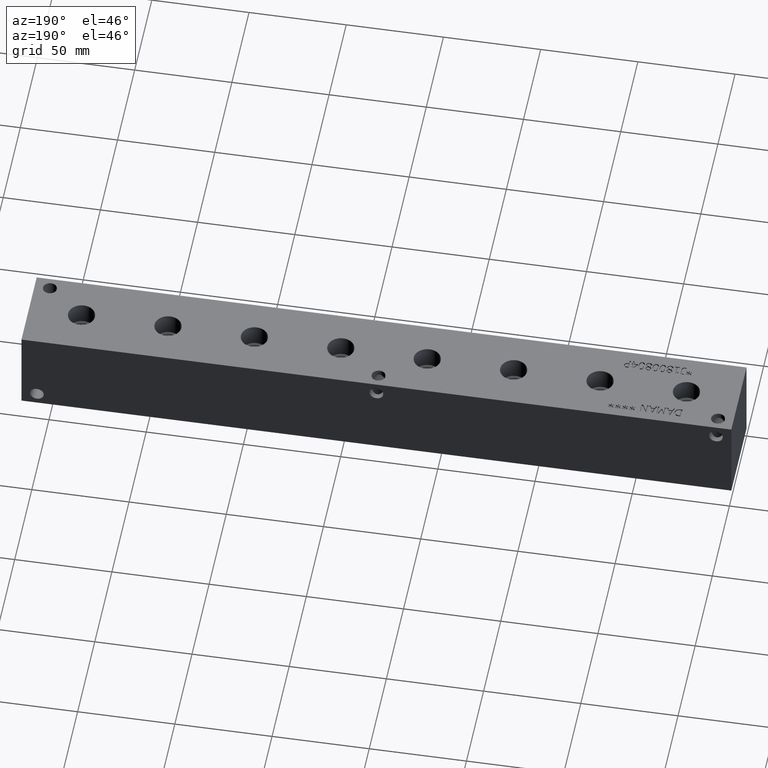
[diagram: clean part render]
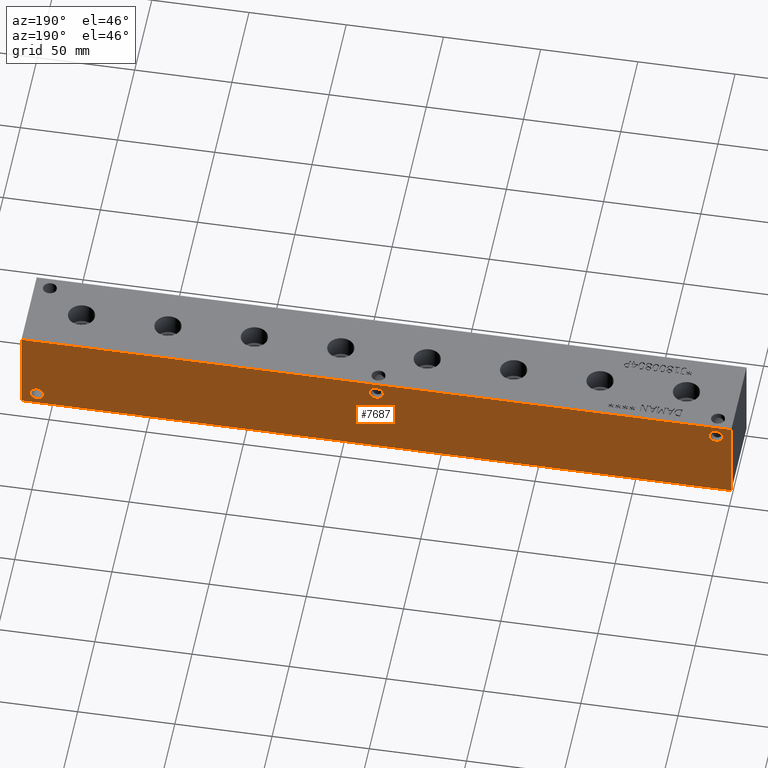
[diagram: same view with one face highlighted and labeled with its STEP entity id]
A machine part, auxiliary view. The second image highlights one B-rep face of the part: STEP entity #7687.
In plain terms, the highlighted planar face has unit normal (0, 1, 0).
Its self-contained STEP definition (entity closure, byte-faithful):
#166=CIRCLE('',#8039,3.5687);
#169=CIRCLE('',#8049,3.5687);
#172=CIRCLE('',#8058,3.5687);
#274=FACE_BOUND('',#1368,.T.);
#275=FACE_BOUND('',#1369,.T.);
#276=FACE_BOUND('',#1370,.T.);
#523=PLANE('',#8140);
#916=FACE_OUTER_BOUND('',#1367,.T.);
#1367=EDGE_LOOP('',(#6856,#6857,#6858,#6859));
#1368=EDGE_LOOP('',(#6860));
#1369=EDGE_LOOP('',(#6861));
#1370=EDGE_LOOP('',(#6862));
#1662=LINE('',#11801,#2382);
#2103=LINE('',#13148,#2823);
#2104=LINE('',#13151,#2824);
#2105=LINE('',#13152,#2825);
#2382=VECTOR('',#8564,10.);
#2823=VECTOR('',#9729,10.);
#2824=VECTOR('',#9732,10.);
#2825=VECTOR('',#9733,10.);
#3321=VERTEX_POINT('',#11798);
#3322=VERTEX_POINT('',#11800);
#3675=VERTEX_POINT('',#12946);
#3680=VERTEX_POINT('',#12964);
#3685=VERTEX_POINT('',#12980);
#3737=VERTEX_POINT('',#13144);
#3739=VERTEX_POINT('',#13150);
#4190=EDGE_CURVE('',#3321,#3322,#1662,.T.);
#4695=EDGE_CURVE('',#3675,#3675,#166,.T.);
#4705=EDGE_CURVE('',#3680,#3680,#169,.T.);
#4714=EDGE_CURVE('',#3685,#3685,#172,.T.);
#4789=EDGE_CURVE('',#3737,#3322,#2103,.T.);
#4790=EDGE_CURVE('',#3739,#3737,#2104,.T.);
#4791=EDGE_CURVE('',#3739,#3321,#2105,.T.);
#6856=ORIENTED_EDGE('',*,*,#4790,.T.);
#6857=ORIENTED_EDGE('',*,*,#4789,.T.);
#6858=ORIENTED_EDGE('',*,*,#4190,.F.);
#6859=ORIENTED_EDGE('',*,*,#4791,.F.);
#6860=ORIENTED_EDGE('',*,*,#4695,.T.);
#6861=ORIENTED_EDGE('',*,*,#4705,.T.);
#6862=ORIENTED_EDGE('',*,*,#4714,.T.);
#7687=ADVANCED_FACE('',(#916,#274,#275,#276),#523,.T.);
#8039=AXIS2_PLACEMENT_3D('',#12948,#9491,#9492);
#8049=AXIS2_PLACEMENT_3D('',#12966,#9514,#9515);
#8058=AXIS2_PLACEMENT_3D('',#12982,#9534,#9535);
#8140=AXIS2_PLACEMENT_3D('',#13149,#9730,#9731);
#8564=DIRECTION('',(-1.,0.,0.));
#9491=DIRECTION('center_axis',(0.,-1.,0.));
#9492=DIRECTION('ref_axis',(1.,0.,0.));
#9514=DIRECTION('center_axis',(0.,-1.,0.));
#9515=DIRECTION('ref_axis',(1.,0.,0.));
#9534=DIRECTION('center_axis',(0.,-1.,0.));
#9535=DIRECTION('ref_axis',(1.,0.,0.));
#9729=DIRECTION('',(0.,0.,1.));
#9730=DIRECTION('center_axis',(0.,1.,0.));
#9731=DIRECTION('ref_axis',(-1.,0.,0.));
#9732=DIRECTION('',(-1.,0.,0.));
#9733=DIRECTION('',(0.,0.,1.));
#11798=CARTESIAN_POINT('',(365.125,44.45,44.45));
#11800=CARTESIAN_POINT('',(0.,44.45,44.45));
#11801=CARTESIAN_POINT('',(365.125,44.45,44.45));
#12946=CARTESIAN_POINT('',(353.6061,44.45,6.35));
#12948=CARTESIAN_POINT('Origin',(357.1748,44.45,6.35));
#12964=CARTESIAN_POINT('',(4.3561,44.45,38.1));
#12966=CARTESIAN_POINT('Origin',(7.9248,44.45,38.1));
#12980=CARTESIAN_POINT('',(179.0065,44.45,38.1));
#12982=CARTESIAN_POINT('Origin',(182.5752,44.45,38.1));
#13144=CARTESIAN_POINT('',(0.,44.45,0.));
#13148=CARTESIAN_POINT('',(0.,44.45,0.));
#13149=CARTESIAN_POINT('Origin',(365.125,44.45,0.));
#13150=CARTESIAN_POINT('',(365.125,44.45,0.));
#13151=CARTESIAN_POINT('',(365.125,44.45,0.));
#13152=CARTESIAN_POINT('',(365.125,44.45,0.));